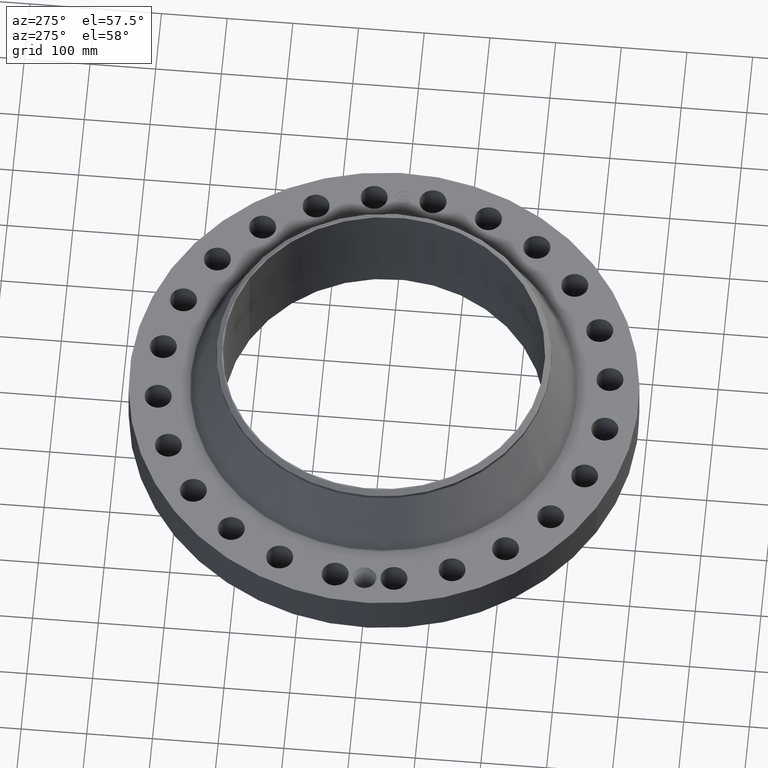
[diagram: clean part render]
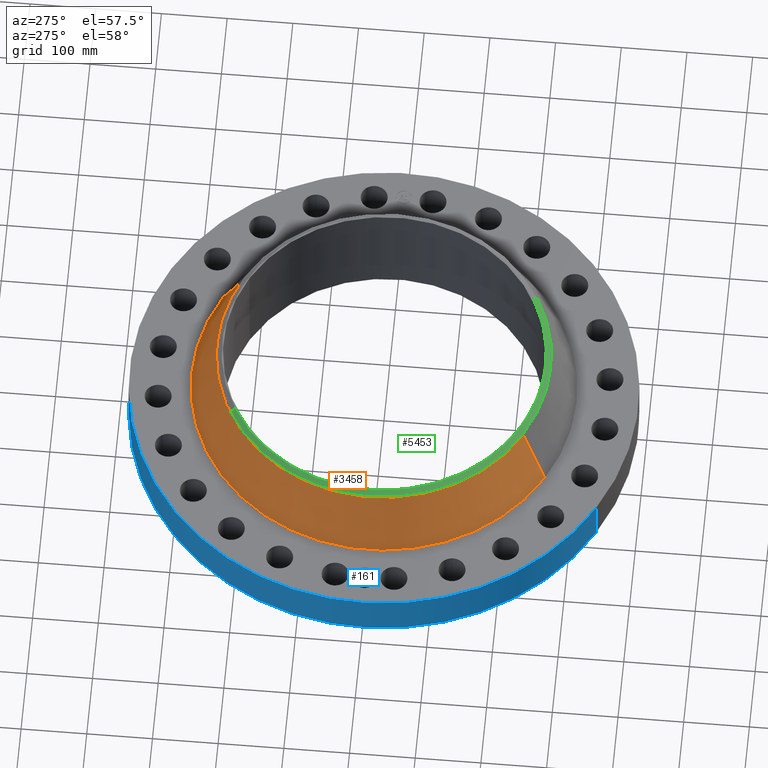
[diagram: same view with three faces highlighted in distinct colors, each labeled with its STEP entity id]
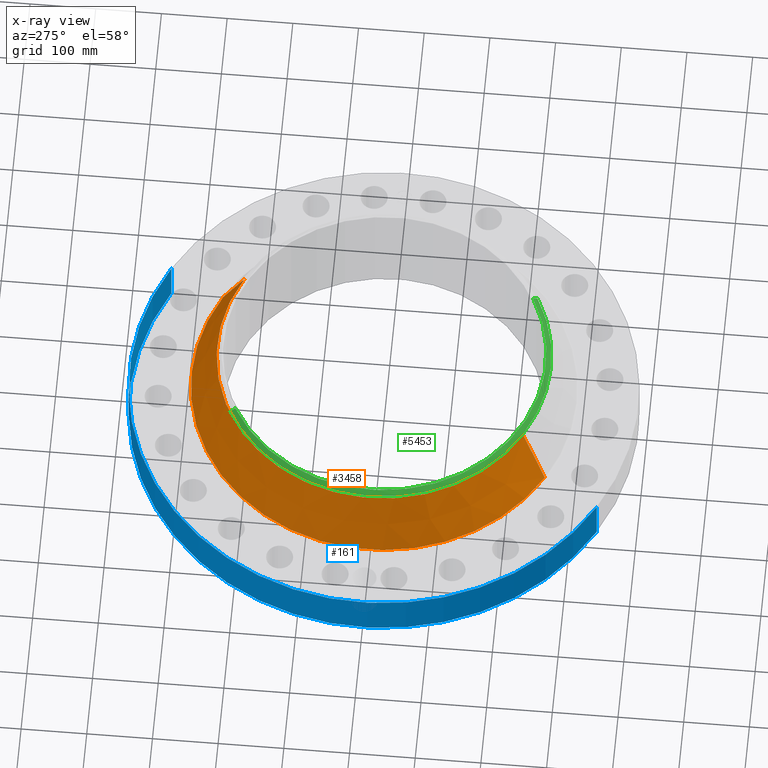
[diagram: x-ray of the same camera — body ghosted, the three highlighted faces saturated]
A machine part, auxiliary view with three faces highlighted in distinct colors.
The next image is the same camera in x-ray (body ghosted, the three faces saturated) — at least one of them is partly hidden behind the body in this view.
Their STEP definitions:

[orange] entity #3458 — the highlighted conical surface has half-angle 24.606 deg.
#2817=AXIS2_PLACEMENT_3D('Circle Axis2P3D',#2815,#2816,$) ;
#3419=AXIS2_PLACEMENT_3D('Cone Axis2P3D',#3416,#3417,#3418) ;
#3449=AXIS2_PLACEMENT_3D('Circle Axis2P3D',#3447,#3448,$) ;
#2793=CARTESIAN_POINT('Vertex',(5.52678255456,10.1167076067,3.07003558671)) ;
#2800=CARTESIAN_POINT('Vertex',(-5.52678255456,-10.1167076067,3.07003558671)) ;
#2815=CARTESIAN_POINT('Axis2P3D Location',(0.,0.,3.07003558671)) ;
#3416=CARTESIAN_POINT('Axis2P3D Location',(0.,0.,6.40645135497)) ;
#3421=CARTESIAN_POINT('Line Origine',(5.16051897031,9.44626661282,4.73824347084)) ;
#3425=CARTESIAN_POINT('Vertex',(4.79425538606,8.77582561894,6.40645135497)) ;
#3432=CARTESIAN_POINT('Vertex',(-4.79425538606,-8.77582561894,6.40645135497)) ;
#3435=CARTESIAN_POINT('Line Origine',(-5.16051897031,-9.44626661282,4.73824347084)) ;
#3447=CARTESIAN_POINT('Axis2P3D Location',(0.,0.,6.40645135497)) ;
#2816=DIRECTION('Axis2P3D Direction',(0.,0.,-0.0393700787402)) ;
#3417=DIRECTION('Axis2P3D Direction',(0.,0.,-0.0393700787402)) ;
#3418=DIRECTION('Axis2P3D XDirection',(-0.0188750212049,-0.0345504945626,0.)) ;
#3422=DIRECTION('Vector Direction',(0.0078589946719,0.0143857932519,-0.0357950870269)) ;
#3436=DIRECTION('Vector Direction',(-0.0078589946719,-0.0143857932519,-0.0357950870269)) ;
#3448=DIRECTION('Axis2P3D Direction',(0.,0.,-0.0393700787402)) ;
#3423=VECTOR('Line Direction',#3422,0.0393700787402) ;
#3437=VECTOR('Line Direction',#3436,0.0393700787402) ;
#3453=ORIENTED_EDGE('',*,*,#2819,.F.) ;
#3454=ORIENTED_EDGE('',*,*,#3439,.T.) ;
#3455=ORIENTED_EDGE('',*,*,#3451,.T.) ;
#3456=ORIENTED_EDGE('',*,*,#3427,.F.) ;
#3458=ADVANCED_FACE('PartBody',(#3457),#3420,.T.) ;
#2818=CIRCLE('generated circle',#2817,11.5279268823) ;
#3450=CIRCLE('generated circle',#3449,10.) ;
#3420=CONICAL_SURFACE('Cone',#3419,10.,0.429449232989) ;
#2819=EDGE_CURVE('',#2801,#2794,#2818,.T.) ;
#3427=EDGE_CURVE('',#2794,#3426,#3424,.F.) ;
#3439=EDGE_CURVE('',#2801,#3433,#3438,.F.) ;
#3451=EDGE_CURVE('',#3433,#3426,#3450,.T.) ;
#3452=EDGE_LOOP('',(#3453,#3454,#3455,#3456)) ;
#3457=FACE_OUTER_BOUND('',#3452,.T.) ;
#3424=LINE('Line',#3421,#3423) ;
#3438=LINE('Line',#3435,#3437) ;
#2794=VERTEX_POINT('',#2793) ;
#2801=VERTEX_POINT('',#2800) ;
#3426=VERTEX_POINT('',#3425) ;
#3433=VERTEX_POINT('',#3432) ;

[blue] entity #161 — the highlighted cylindrical surface (partial cylindrical patch) has radius 387.35 mm, axis along (0, 0, -1).
#38=AXIS2_PLACEMENT_3D('Cylinder Axis2P3D',#35,#36,#37) ;
#42=AXIS2_PLACEMENT_3D('Circle Axis2P3D',#40,#41,$) ;
#58=AXIS2_PLACEMENT_3D('Circle Axis2P3D',#56,#57,$) ;
#35=CARTESIAN_POINT('Axis2P3D Location',(0.,0.,3.43500000001)) ;
#40=CARTESIAN_POINT('Axis2P3D Location',(0.,0.,0.250000000001)) ;
#44=CARTESIAN_POINT('Vertex',(-7.31123946374,-13.3831340689,0.250000000001)) ;
#46=CARTESIAN_POINT('Vertex',(7.31123946374,13.3831340689,0.250000000001)) ;
#49=CARTESIAN_POINT('Line Origine',(-7.31123946374,-13.3831340689,1.62500000001)) ;
#53=CARTESIAN_POINT('Vertex',(-7.31123946374,-13.3831340689,3.00000000001)) ;
#56=CARTESIAN_POINT('Axis2P3D Location',(0.,0.,3.00000000001)) ;
#60=CARTESIAN_POINT('Vertex',(7.31123946374,13.3831340689,3.00000000001)) ;
#63=CARTESIAN_POINT('Line Origine',(7.31123946374,13.3831340689,1.62500000001)) ;
#75=CARTESIAN_POINT('Control Point',(-0.000716049755696,15.2499999833,1.29411846129)) ;
#76=CARTESIAN_POINT('Control Point',(-0.0189701072514,15.2499991261,1.29408159437)) ;
#77=CARTESIAN_POINT('Control Point',(-0.0372209751277,15.2499652355,1.29262936671)) ;
#78=CARTESIAN_POINT('Control Point',(-0.0552509399566,15.2498999123,1.28977927812)) ;
#79=CARTESIAN_POINT('Vertex',(-0.000715697200088,15.2499999833,1.29411851055)) ;
#81=CARTESIAN_POINT('Vertex',(-0.055242138106,15.2499001965,1.28978068759)) ;
#85=CARTESIAN_POINT('Control Point',(-0.0552420427631,15.2498999445,1.28978014022)) ;
#86=CARTESIAN_POINT('Control Point',(-0.095698156942,15.2497533942,1.28536268072)) ;
#87=CARTESIAN_POINT('Control Point',(-0.135516524696,15.2494419834,1.27358724126)) ;
#88=CARTESIAN_POINT('Control Point',(-0.172195687342,15.2490277935,1.25523274047)) ;
#89=CARTESIAN_POINT('Vertex',(-0.172195687342,15.2490277935,1.25523274047)) ;
#93=CARTESIAN_POINT('Control Point',(-0.0310152642592,15.2499684608,0.53118928844)) ;
#94=CARTESIAN_POINT('Control Point',(-0.0961823379047,15.2498359245,0.539436739118)) ;
#95=CARTESIAN_POINT('Control Point',(-0.159294043281,15.2493594722,0.561293751232)) ;
#96=CARTESIAN_POINT('Control Point',(-0.216401136753,15.2485887094,0.596098828463)) ;
#97=CARTESIAN_POINT('Control Point',(-0.288819771371,15.2473275345,0.664189974617)) ;
#98=CARTESIAN_POINT('Control Point',(-0.336428392602,15.2462994751,0.748671468951)) ;
#99=CARTESIAN_POINT('Control Point',(-0.349472605904,15.2460004619,0.778732970034)) ;
#100=CARTESIAN_POINT('Control Point',(-0.371687708328,15.2454753168,0.848970817426)) ;
#101=CARTESIAN_POINT('Control Point',(-0.377175372884,15.2453335918,0.922141203018)) ;
#102=CARTESIAN_POINT('Control Point',(-0.37491028849,15.2453911791,0.962947952159)) ;
#103=CARTESIAN_POINT('Control Point',(-0.356496036746,15.245851249,1.0607243321)) ;
#104=CARTESIAN_POINT('Control Point',(-0.308136792121,15.2469313731,1.14794325761)) ;
#105=CARTESIAN_POINT('Control Point',(-0.269818079944,15.2477093271,1.19323963325)) ;
#106=CARTESIAN_POINT('Control Point',(-0.223535778869,15.2484480489,1.22954180685)) ;
#107=CARTESIAN_POINT('Control Point',(-0.172195687342,15.2490277935,1.25523274047)) ;
#108=CARTESIAN_POINT('Vertex',(-0.0310152642592,15.2499684608,0.53118928844)) ;
#112=CARTESIAN_POINT('Control Point',(-0.0310152642592,15.2499684608,0.53118928844)) ;
#113=CARTESIAN_POINT('Control Point',(-0.0206719752859,15.2499894969,0.53087456983)) ;
#114=CARTESIAN_POINT('Control Point',(-0.0103211166376,15.2500000019,0.530936539703)) ;
#115=CARTESIAN_POINT('Control Point',(2.72878355969E-006,15.2500000001,0.531374667806)) ;
#116=CARTESIAN_POINT('Vertex',(2.72878354271E-006,15.2500000001,0.531374667806)) ;
#120=CARTESIAN_POINT('Control Point',(0.192625061438,15.2487834134,0.58741326924)) ;
#121=CARTESIAN_POINT('Control Point',(0.149005457583,15.2493344231,0.562040395774)) ;
#122=CARTESIAN_POINT('Control Point',(0.101116386692,15.2497737091,0.543779824758)) ;
#123=CARTESIAN_POINT('Control Point',(0.0508056148165,15.249999991,0.533530663287)) ;
#124=CARTESIAN_POINT('Control Point',(2.72878353259E-006,15.2500000001,0.531374667806)) ;
#125=CARTESIAN_POINT('Vertex',(0.192625061438,15.2487834134,0.58741326924)) ;
#129=CARTESIAN_POINT('Control Point',(0.192625061438,15.2487834134,0.58741326924)) ;
#130=CARTESIAN_POINT('Control Point',(0.249453783221,15.2480655439,0.620469689007)) ;
#131=CARTESIAN_POINT('Control Point',(0.299509163539,15.2471684596,0.664842822409)) ;
#132=CARTESIAN_POINT('Control Point',(0.339645810427,15.2462572537,0.718973028906)) ;
#133=CARTESIAN_POINT('Control Point',(0.383846820952,15.2451782415,0.817171323321)) ;
#134=CARTESIAN_POINT('Control Point',(0.39239494857,15.2449495023,0.922456432737)) ;
#135=CARTESIAN_POINT('Control Point',(0.390268294849,15.2450057477,0.962621077947)) ;
#136=CARTESIAN_POINT('Control Point',(0.3760952443,15.2453740937,1.03752589659)) ;
#137=CARTESIAN_POINT('Control Point',(0.343961436371,15.2461332323,1.10595638754)) ;
#138=CARTESIAN_POINT('Control Point',(0.324884519545,15.2465612243,1.13637813139)) ;
#139=CARTESIAN_POINT('Control Point',(0.263167036752,15.2478271655,1.21273609866)) ;
#140=CARTESIAN_POINT('Control Point',(0.180082080152,15.2490857223,1.26567044333)) ;
#141=CARTESIAN_POINT('Control Point',(0.121355009482,15.2497029237,1.28768574767)) ;
#142=CARTESIAN_POINT('Control Point',(0.0601974085754,15.2500001022,1.29710564982)) ;
#143=CARTESIAN_POINT('Control Point',(-2.58579355474E-005,15.25,1.2941529843)) ;
#144=CARTESIAN_POINT('Vertex',(-2.5857935549E-005,15.25,1.2941529843)) ;
#148=CARTESIAN_POINT('Control Point',(-0.000715697190492,15.2499999833,1.29411851054)) ;
#149=CARTESIAN_POINT('Control Point',(-0.000370802107379,15.2499999995,1.29413607216)) ;
#150=CARTESIAN_POINT('Control Point',(-2.5857940579E-005,15.25,1.2941529843)) ;
#36=DIRECTION('Axis2P3D Direction',(0.,0.,-0.0393700787402)) ;
#37=DIRECTION('Axis2P3D XDirection',(0.0188750212049,0.0345504945626,0.)) ;
#41=DIRECTION('Axis2P3D Direction',(0.,0.,-0.0393700787402)) ;
#50=DIRECTION('Vector Direction',(0.,0.,-0.0393700787402)) ;
#57=DIRECTION('Axis2P3D Direction',(0.,0.,-0.0393700787402)) ;
#64=DIRECTION('Vector Direction',(0.,0.,-0.0393700787402)) ;
#51=VECTOR('Line Direction',#50,0.0393700787402) ;
#65=VECTOR('Line Direction',#64,0.0393700787402) ;
#69=ORIENTED_EDGE('',*,*,#48,.F.) ;
#70=ORIENTED_EDGE('',*,*,#55,.T.) ;
#71=ORIENTED_EDGE('',*,*,#62,.T.) ;
#72=ORIENTED_EDGE('',*,*,#67,.F.) ;
#153=ORIENTED_EDGE('',*,*,#83,.T.) ;
#154=ORIENTED_EDGE('',*,*,#91,.T.) ;
#155=ORIENTED_EDGE('',*,*,#110,.F.) ;
#156=ORIENTED_EDGE('',*,*,#118,.T.) ;
#157=ORIENTED_EDGE('',*,*,#127,.F.) ;
#158=ORIENTED_EDGE('',*,*,#146,.T.) ;
#159=ORIENTED_EDGE('',*,*,#151,.F.) ;
#160=FACE_BOUND('',#152,.T.) ;
#161=ADVANCED_FACE('PartBody',(#73,#160),#39,.T.) ;
#74=B_SPLINE_CURVE_WITH_KNOTS('',3,(#75,#76,#77,#78),.UNSPECIFIED.,.F.,.U.,(4,4),(34.6166020633,36.6417164771),.UNSPECIFIED.) ;
#84=B_SPLINE_CURVE_WITH_KNOTS('',3,(#85,#86,#87,#88),.UNSPECIFIED.,.F.,.U.,(4,4),(0.,4.57283024519),.UNSPECIFIED.) ;
#92=B_SPLINE_CURVE_WITH_KNOTS('',5,(#93,#94,#95,#96,#97,#98,#99,#100,#101,#102,#103,#104,#105,#106,#107),.UNSPECIFIED.,.F.,.U.,(6,3,3,3,6),(0.,11.415630101,17.2563855938,24.6134498384,35.281156666),.UNSPECIFIED.) ;
#111=B_SPLINE_CURVE_WITH_KNOTS('',3,(#112,#113,#114,#115),.UNSPECIFIED.,.F.,.U.,(4,4),(0.,1.07896259327),.UNSPECIFIED.) ;
#119=B_SPLINE_CURVE_WITH_KNOTS('',4,(#120,#121,#122,#123,#124),.UNSPECIFIED.,.F.,.U.,(5,5),(0.,7.07932769437),.UNSPECIFIED.) ;
#128=B_SPLINE_CURVE_WITH_KNOTS('',5,(#129,#130,#131,#132,#133,#134,#135,#136,#137,#138,#139,#140,#141,#142,#143),.UNSPECIFIED.,.F.,.U.,(6,3,3,3,6),(0.,11.5289086212,18.6079826678,25.0299917419,36.2869702339),.UNSPECIFIED.) ;
#147=B_SPLINE_CURVE_WITH_KNOTS('',2,(#148,#149,#150),.UNSPECIFIED.,.F.,.U.,(3,3),(1.021811413,1.04760230385),.UNSPECIFIED.) ;
#43=CIRCLE('generated circle',#42,15.2500000001) ;
#59=CIRCLE('generated circle',#58,15.2500000001) ;
#39=CYLINDRICAL_SURFACE('generated cylinder',#38,15.2500000001) ;
#48=EDGE_CURVE('',#45,#47,#43,.T.) ;
#55=EDGE_CURVE('',#45,#54,#52,.F.) ;
#62=EDGE_CURVE('',#54,#61,#59,.T.) ;
#67=EDGE_CURVE('',#47,#61,#66,.F.) ;
#83=EDGE_CURVE('',#80,#82,#74,.T.) ;
#91=EDGE_CURVE('',#82,#90,#84,.T.) ;
#110=EDGE_CURVE('',#109,#90,#92,.T.) ;
#118=EDGE_CURVE('',#109,#117,#111,.T.) ;
#127=EDGE_CURVE('',#126,#117,#119,.T.) ;
#146=EDGE_CURVE('',#126,#145,#128,.T.) ;
#151=EDGE_CURVE('',#80,#145,#147,.T.) ;
#68=EDGE_LOOP('',(#69,#70,#71,#72)) ;
#152=EDGE_LOOP('',(#153,#154,#155,#156,#157,#158,#159)) ;
#73=FACE_OUTER_BOUND('',#68,.T.) ;
#52=LINE('Line',#49,#51) ;
#66=LINE('Line',#63,#65) ;
#45=VERTEX_POINT('',#44) ;
#47=VERTEX_POINT('',#46) ;
#54=VERTEX_POINT('',#53) ;
#61=VERTEX_POINT('',#60) ;
#80=VERTEX_POINT('',#79) ;
#82=VERTEX_POINT('',#81) ;
#90=VERTEX_POINT('',#89) ;
#109=VERTEX_POINT('',#108) ;
#117=VERTEX_POINT('',#116) ;
#126=VERTEX_POINT('',#125) ;
#145=VERTEX_POINT('',#144) ;

[green] entity #5453 — the highlighted conical surface has half-angle 52.5 deg.
#4255=AXIS2_PLACEMENT_3D('Circle Axis2P3D',#4253,#4254,$) ;
#4268=AXIS2_PLACEMENT_3D('Circle Axis2P3D',#4266,#4267,$) ;
#5070=AXIS2_PLACEMENT_3D('Circle Axis2P3D',#5068,#5069,$) ;
#5426=AXIS2_PLACEMENT_3D('Cone Axis2P3D',#5423,#5424,#5425) ;
#4236=CARTESIAN_POINT('Vertex',(-4.79425538606,-8.77582561894,6.64267182741)) ;
#4250=CARTESIAN_POINT('Vertex',(4.79425538606,-8.77582561894,6.64267182741)) ;
#4253=CARTESIAN_POINT('Axis2P3D Location',(0.,0.,6.64267182741)) ;
#4266=CARTESIAN_POINT('Axis2P3D Location',(0.,0.,6.64267182741)) ;
#4270=CARTESIAN_POINT('Vertex',(-4.79425538606,8.77582561894,6.64267182741)) ;
#5063=CARTESIAN_POINT('Vertex',(4.65222085149,-8.51583314735,6.87000000003)) ;
#5065=CARTESIAN_POINT('Vertex',(-4.65222085149,8.51583314735,6.87000000003)) ;
#5068=CARTESIAN_POINT('Axis2P3D Location',(0.,0.,6.87000000003)) ;
#5423=CARTESIAN_POINT('Axis2P3D Location',(0.,0.,6.87000000003)) ;
#5428=CARTESIAN_POINT('Line Origine',(-4.72323811878,8.64582938315,6.75633591372)) ;
#5433=CARTESIAN_POINT('Line Origine',(4.72323811878,-8.64582938315,6.75633591372)) ;
#4254=DIRECTION('Axis2P3D Direction',(0.,0.,-0.0393700787402)) ;
#4267=DIRECTION('Axis2P3D Direction',(0.,0.,-0.0393700787402)) ;
#5069=DIRECTION('Axis2P3D Direction',(0.,0.,-0.0393700787402)) ;
#5424=DIRECTION('Axis2P3D Direction',(-0.,-0.,-0.0393700787402)) ;
#5425=DIRECTION('Axis2P3D XDirection',(0.0188750212049,-0.0345504945626,0.)) ;
#5429=DIRECTION('Vector Direction',(-0.014974561121,0.02741075027,-0.023966985394)) ;
#5434=DIRECTION('Vector Direction',(0.014974561121,-0.02741075027,-0.023966985394)) ;
#5430=VECTOR('Line Direction',#5429,0.0393700787402) ;
#5435=VECTOR('Line Direction',#5434,0.0393700787402) ;
#5447=ORIENTED_EDGE('',*,*,#5437,.F.) ;
#5448=ORIENTED_EDGE('',*,*,#5072,.F.) ;
#5449=ORIENTED_EDGE('',*,*,#5432,.T.) ;
#5450=ORIENTED_EDGE('',*,*,#4272,.T.) ;
#5451=ORIENTED_EDGE('',*,*,#4257,.F.) ;
#5453=ADVANCED_FACE('PartBody',(#5452),#5427,.T.) ;
#4256=CIRCLE('generated circle',#4255,10.) ;
#4269=CIRCLE('generated circle',#4268,10.) ;
#5071=CIRCLE('generated circle',#5070,9.70374015752) ;
#5427=CONICAL_SURFACE('Cone',#5426,9.70374015752,0.916297857297) ;
#4257=EDGE_CURVE('',#4251,#4237,#4256,.T.) ;
#4272=EDGE_CURVE('',#4271,#4237,#4269,.F.) ;
#5072=EDGE_CURVE('',#5066,#5064,#5071,.F.) ;
#5432=EDGE_CURVE('',#5066,#4271,#5431,.T.) ;
#5437=EDGE_CURVE('',#5064,#4251,#5436,.T.) ;
#5446=EDGE_LOOP('',(#5447,#5448,#5449,#5450,#5451)) ;
#5452=FACE_OUTER_BOUND('',#5446,.T.) ;
#5431=LINE('Line',#5428,#5430) ;
#5436=LINE('Line',#5433,#5435) ;
#4237=VERTEX_POINT('',#4236) ;
#4251=VERTEX_POINT('',#4250) ;
#4271=VERTEX_POINT('',#4270) ;
#5064=VERTEX_POINT('',#5063) ;
#5066=VERTEX_POINT('',#5065) ;